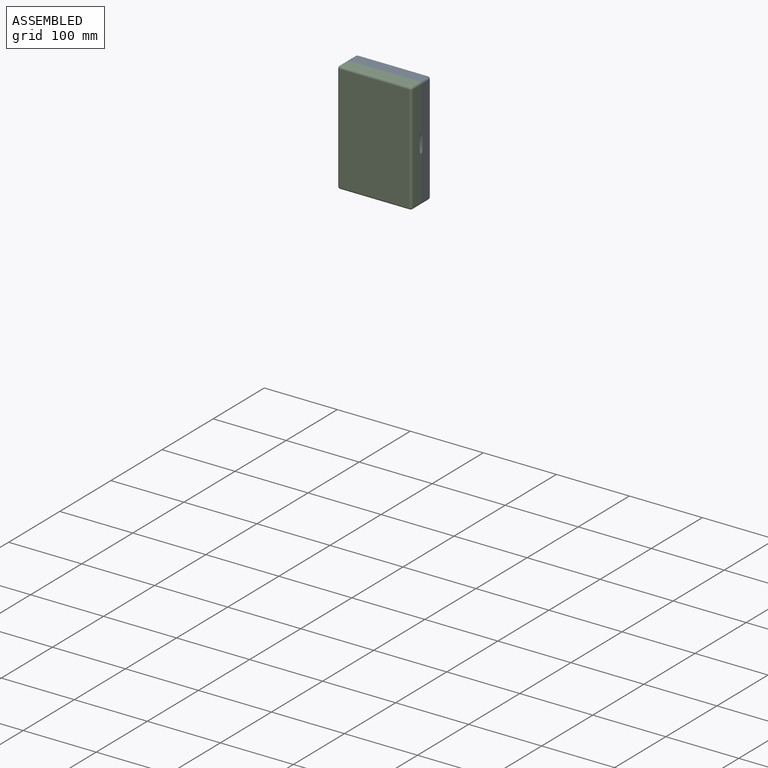
[diagram: assembled view]
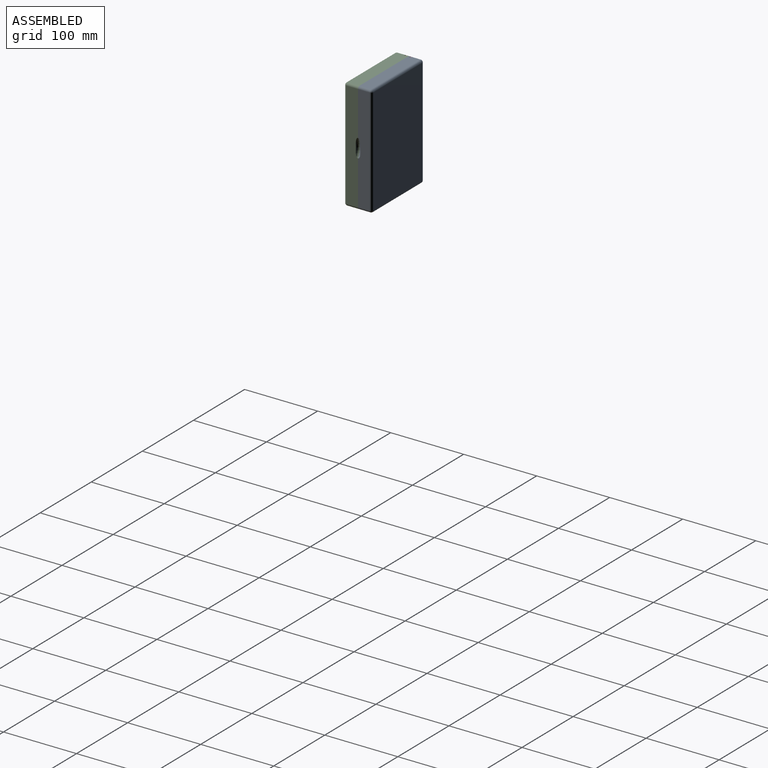
[diagram: assembled view, second angle]
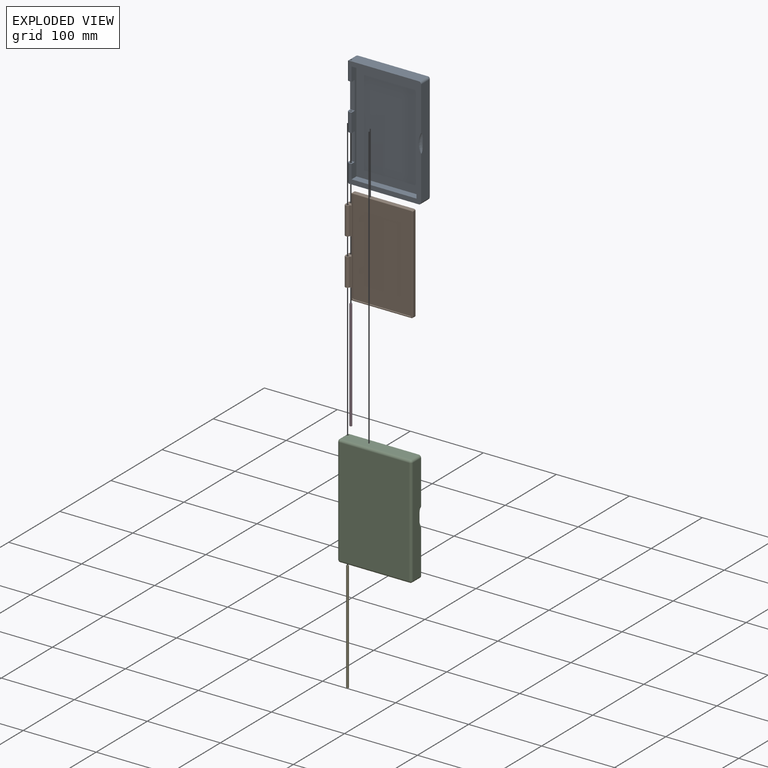
[diagram: exploded view]
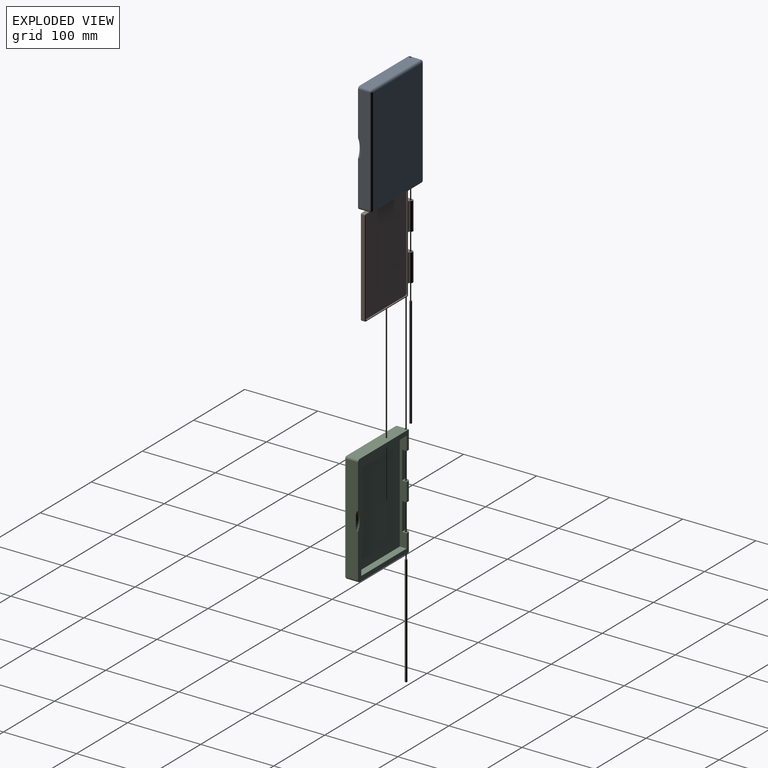
[diagram: exploded view, second angle]
ASSEMBLY  parts=5 mates=4
PART A: 39 faces, bbox 106.4x21.3x152.4 mm
  f0: plane 152.4x98.43mm, normal (0,-1,0), area 2198.4mm2, adj f1,f3,f4,f6,f8,f9,f10,f12
  f1: plane 146.05x15.88mm, normal (-1,0,0), area 2248.1mm2, adj f0,f21,f24,f25,f36,f37,f38
  f2: plane 25.4x3.18mm, normal (0,-1,0), area 80.6mm2, adj f3,f13,f16,f35
  f3: plane 139.7x9.53mm, normal (-1,0,0), area 846.8mm2, adj f0,f2,f8,f10,f11,f12,f13,f14
  f4: plane 95.25x15.88mm, normal (0,0,-1), area 1508.1mm2, adj f0,f19,f21,f26,f27
  f5: plane 146.05x12.7mm, normal (1,0,0), area 1612.9mm2, adj f12,f13,f14,f15,f16,f17,f23,f27
  f6: plane 95.25x15.88mm, normal (0,0,1), area 1508.1mm2, adj f0,f20,f24,f30,f33
  f7: plane 146.05x95.25mm, normal (0,1,0), area 13911.3mm2, adj f25,f26,f30,f31
  f8: plane 88.9x9.53mm, normal (0,0,-1), area 846.8mm2, adj f0,f3,f9,f11
  f9: plane 139.7x9.53mm, normal (1,0,0), area 1330.6mm2, adj f0,f8,f10,f11
  f10: plane 88.9x9.53mm, normal (0,0,1), area 846.8mm2, adj f0,f3,f9,f11
  f11: plane 139.7x88.9mm, normal (0,-1,0), area 12419.3mm2, adj f3,f8,f9,f10
  f12: plane 6.35x6.35mm, normal (0,0,-1), area 30.2mm2, adj f0,f3,f5,f14,f20,f34
  f13: plane 6.35x6.35mm, normal (0,0,1), area 30.2mm2, adj f2,f3,f5,f14,f18,f35
  f14: plane 38.1x6.35mm, normal (0,-1,0), area 241.9mm2, adj f3,f5,f12,f13
  f15: plane 6.35x6.35mm, normal (0,0,1), area 30.2mm2, adj f0,f3,f5,f17,f19,f23
  f16: plane 6.35x6.35mm, normal (0,0,-1), area 30.2mm2, adj f2,f3,f5,f17,f18,f35
  f17: plane 38.1x6.35mm, normal (0,-1,0), area 241.9mm2, adj f3,f5,f15,f16
  f18: cylinder r=1.59mm len=25.4mm, axis (0,0,1), area 253.4mm2, adj f13,f16
  f19: cylinder r=1.59mm len=25.4mm, axis (0,0,1), area 252.3mm2, adj f4,f15,f27
  f20: cylinder r=1.59mm len=25.4mm, axis (0,0,1), area 252.3mm2, adj f6,f12,f33
  f21: cylinder r=3.17mm len=15.88mm, axis (0,1,0), area 79.2mm2, adj f0,f1,f4,f22
  f22: sphere r=3.17mm, area 15.8mm2, adj f21,f25,f26
  f23: cylinder r=3.17mm len=25.4mm, axis (0,0,-1), area 120.9mm2, adj f0,f5,f15,f27
  f24: cylinder r=3.17mm len=15.88mm, axis (0,-1,0), area 79.2mm2, adj f0,f1,f6,f28
  f25: cylinder r=3.17mm len=146.05mm, axis (0,0,-1), area 728.4mm2, adj f1,f7,f22,f28
  f26: cylinder r=3.17mm len=95.25mm, axis (1,0,0), area 475mm2, adj f4,f7,f22,f29
  f27: cylinder r=3.17mm len=15.88mm, axis (0,-1,0), area 69.3mm2, adj f4,f5,f19,f23,f29
  f28: sphere r=3.17mm, area 15.8mm2, adj f24,f25,f30
  f29: sphere r=3.17mm, area 15.8mm2, adj f26,f27,f31
  f30: cylinder r=3.17mm len=95.25mm, axis (-1,0,0), area 475mm2, adj f6,f7,f28,f32
  f31: cylinder r=3.17mm len=146.05mm, axis (0,0,1), area 728.4mm2, adj f5,f7,f29,f32
  f32: sphere r=3.17mm, area 15.8mm2, adj f30,f31,f33
  f33: cylinder r=3.17mm len=15.88mm, axis (0,1,0), area 69.3mm2, adj f5,f6,f20,f32,f34
  f34: cylinder r=3.17mm len=25.4mm, axis (0,0,-1), area 120.9mm2, adj f0,f5,f12,f33
  f35: cylinder r=3.17mm len=25.4mm, axis (0,0,-1), area 126.7mm2, adj f2,f5,f13,f16
  f36: torus R=22.23mm, axis (0,-1,0), area 47.9mm2, adj f0,f1,f37
  f37: cylinder r=3.17mm len=3.18mm, axis (0,0,1), area 4mm2, adj f0,f1,f36,f38
  f38: torus R=22.23mm, axis (0,-1,0), area 47.9mm2, adj f0,f1,f37
PART B: 64 faces, bbox 92.2x12.7x133.6 mm
  f0: plane 38.1x6.35mm, normal (1,0,0), area 241.9mm2, adj f8,f9,f28,f29
  f1: plane 131.76x84.93mm, normal (0,-1,0), area 520.8mm2, adj f5,f7,f8,f9,f18,f19,f20,f21
  f2: plane 131.76x84.93mm, normal (0,1,0), area 520.8mm2, adj f5,f7,f8,f9,f13,f14,f15,f16
  f3: plane 80.96x4.76mm, normal (0,0,1), area 385.6mm2, adj f40,f42,f47,f55
  f4: plane 80.96x4.76mm, normal (0,0,-1), area 385.6mm2, adj f41,f43,f50,f59
  f5: plane 12.7x8.73mm, normal (0,0,-1), area 66.5mm2, adj f1,f2,f6,f23,f26,f27,f30,f31
  f6: plane 38.1x6.35mm, normal (1,0,0), area 241.9mm2, adj f5,f7,f30,f31
  f7: plane 12.7x8.73mm, normal (0,0,1), area 66.5mm2, adj f1,f2,f6,f12,f26,f27,f30,f31
  f8: plane 12.7x8.73mm, normal (0,0,1), area 66.5mm2, adj f0,f1,f2,f23,f24,f25,f28,f29
  f9: plane 12.7x8.73mm, normal (0,0,-1), area 66.5mm2, adj f0,f1,f2,f11,f24,f25,f28,f29
  f10: plane 130.18x4.76mm, normal (-1,0,0), area 620mm2, adj f42,f43,f51,f57
  f11: plane 14.29x4.76mm, normal (1,0,0), area 68mm2, adj f9,f41,f46,f60
  f12: plane 14.29x4.76mm, normal (1,0,0), area 68mm2, adj f7,f40,f44,f53
  f13: plane 77.79x1.59mm, normal (0,0,-1), area 123.5mm2, adj f2,f17,f36,f39
  f14: plane 127x1.59mm, normal (-1,0,0), area 201.6mm2, adj f2,f17,f36,f37
  f15: plane 77.79x1.59mm, normal (0,0,1), area 123.5mm2, adj f2,f17,f37,f38
  f16: plane 127x1.59mm, normal (1,0,0), area 201.6mm2, adj f2,f17,f38,f39
  f17: plane 130.18x80.96mm, normal (0,1,0), area 10537.1mm2, adj f13,f14,f15,f16,f36,f37,f38,f39
  f18: plane 77.79x1.59mm, normal (0,0,1), area 123.5mm2, adj f1,f22,f32,f35
  f19: plane 127x1.59mm, normal (-1,0,0), area 201.6mm2, adj f1,f22,f32,f33
  f20: plane 77.79x1.59mm, normal (0,0,-1), area 123.5mm2, adj f1,f22,f33,f34
  f21: plane 127x1.59mm, normal (1,0,0), area 201.6mm2, adj f1,f22,f34,f35
  f22: plane 130.18x80.96mm, normal (0,-1,0), area 10537.1mm2, adj f18,f19,f20,f21,f32,f33,f34,f35
  f23: plane 25.4x4.76mm, normal (1,0,0), area 121mm2, adj f5,f8,f62,f63
  f24: cylinder r=1.59mm len=38.1mm, axis (0,0,-1), area 380mm2, adj f8,f9
  f25: cylinder r=1.59mm len=38.1mm, axis (0,0,-1), area 380mm2, adj f8,f9
  f26: cylinder r=1.59mm len=38.1mm, axis (0,0,-1), area 380mm2, adj f5,f7
  f27: cylinder r=1.59mm len=38.1mm, axis (0,0,-1), area 380mm2, adj f5,f7
  f28: cylinder r=3.17mm len=38.1mm, axis (0,0,1), area 380mm2, adj f0,f2,f8,f9
  f29: cylinder r=3.17mm len=38.1mm, axis (0,0,-1), area 380mm2, adj f0,f1,f8,f9
  f30: cylinder r=3.17mm len=38.1mm, axis (0,0,-1), area 380mm2, adj f2,f5,f6,f7
  f31: cylinder r=3.17mm len=38.1mm, axis (0,0,1), area 380mm2, adj f1,f5,f6,f7
  f32: cylinder r=1.59mm len=1.59mm, axis (0,-1,0), area 4mm2, adj f1,f18,f19,f22
  f33: cylinder r=1.59mm len=1.59mm, axis (0,1,0), area 4mm2, adj f1,f19,f20,f22
  f34: cylinder r=1.59mm len=1.59mm, axis (0,1,0), area 4mm2, adj f1,f20,f21,f22
  f35: cylinder r=1.59mm len=1.59mm, axis (0,-1,0), area 4mm2, adj f1,f18,f21,f22
  f36: cylinder r=1.59mm len=1.59mm, axis (0,1,0), area 4mm2, adj f2,f13,f14,f17
  f37: cylinder r=1.59mm len=1.59mm, axis (0,-1,0), area 4mm2, adj f2,f14,f15,f17
  f38: cylinder r=1.59mm len=1.59mm, axis (0,1,0), area 4mm2, adj f2,f15,f16,f17
  f39: cylinder r=1.59mm len=1.59mm, axis (0,-1,0), area 4mm2, adj f2,f13,f16,f17
  f40: cylinder r=1.59mm len=4.76mm, axis (0,-1,0), area 11.9mm2, adj f3,f12,f45,f54
  f41: cylinder r=1.59mm len=4.76mm, axis (0,-1,0), area 11.9mm2, adj f4,f11,f48,f61
  f42: cylinder r=1.59mm len=4.76mm, axis (0,1,0), area 11.9mm2, adj f3,f10,f49,f56
  f43: cylinder r=1.59mm len=4.76mm, axis (0,-1,0), area 11.9mm2, adj f4,f10,f52,f58
  f44: cylinder r=0.79mm len=14.29mm, axis (0,0,-1), area 17.8mm2, adj f2,f7,f12,f45
  f45: torus R=0.79mm, axis (0,-1,0), area 2.5mm2, adj f2,f40,f44,f47
  f46: cylinder r=0.79mm len=14.29mm, axis (0,0,-1), area 17.8mm2, adj f2,f9,f11,f48
  f47: cylinder r=0.79mm len=80.96mm, axis (-1,0,0), area 100.9mm2, adj f2,f3,f45,f49
  f48: torus R=0.79mm, axis (0,-1,0), area 2.5mm2, adj f2,f41,f46,f50
  f49: torus R=0.79mm, axis (0,-1,0), area 2.5mm2, adj f2,f42,f47,f51
  f50: cylinder r=0.79mm len=80.96mm, axis (1,0,0), area 100.9mm2, adj f2,f4,f48,f52
  f51: cylinder r=0.79mm len=130.18mm, axis (0,0,-1), area 162.3mm2, adj f2,f10,f49,f52
  f52: torus R=0.79mm, axis (0,-1,0), area 2.5mm2, adj f2,f43,f50,f51
  f53: cylinder r=0.79mm len=14.29mm, axis (0,0,1), area 17.8mm2, adj f1,f7,f12,f54
  f54: torus R=0.79mm, axis (0,-1,0), area 2.5mm2, adj f1,f40,f53,f55
  f55: cylinder r=0.79mm len=80.96mm, axis (1,0,0), area 100.9mm2, adj f1,f3,f54,f56
  f56: torus R=0.79mm, axis (0,-1,0), area 2.5mm2, adj f1,f42,f55,f57
  f57: cylinder r=0.79mm len=130.18mm, axis (0,0,1), area 162.3mm2, adj f1,f10,f56,f58
  f58: torus R=0.79mm, axis (0,-1,0), area 2.5mm2, adj f1,f43,f57,f59
  f59: cylinder r=0.79mm len=80.96mm, axis (-1,0,0), area 100.9mm2, adj f1,f4,f58,f61
  f60: cylinder r=0.79mm len=14.29mm, axis (0,0,1), area 17.8mm2, adj f1,f9,f11,f61
  f61: torus R=0.79mm, axis (0,-1,0), area 2.5mm2, adj f1,f41,f59,f60
  f62: cylinder r=0.79mm len=25.4mm, axis (0,0,1), area 31.7mm2, adj f1,f5,f8,f23
  f63: cylinder r=0.79mm len=25.4mm, axis (0,0,-1), area 31.7mm2, adj f2,f5,f8,f23
PART C: same geometry as A
PART D: 3 faces, bbox 3.2x3.2x151.6 mm
  f0: cylinder r=1.59mm len=151.56mm, axis (0,0,-1), area 1511.8mm2, adj f1,f2
  f1: plane 3.18x3.18mm, normal (0,0,1), area 7.9mm2, adj f0
  f2: plane 3.18x3.18mm, normal (0,0,-1), area 7.9mm2, adj f0
PART E: same geometry as D
PLACE A rot(axis=(0,1,0),180deg) t=(84.14,9.52,0)mm fixed
PLACE B rot(axis=(0,0,1),180deg) t=(79.37,0,0)mm
PLACE C rot(axis=(0,0,1),180deg) t=(84.14,-9.53,0)mm
PLACE D t=(36.51,3.17,0)mm
PLACE E rot(axis=(0,0,1),180deg) t=(36.51,-3.17,0)mm
MATE fastened D.f0 <-> A.f23  axis (0,0,-1) through (36.51,3.17,-75.78)mm
MATE revolute C.f18 <-> B.f25  axis (0,0,-1) through (36.51,-3.17,-50.8)mm
MATE revolute A.f23 <-> B.f24  axis (0,0,1) through (36.51,3.17,-50.8)mm
MATE fastened E.f0 <-> C.f18  axis (0,0,-1) through (36.51,-3.17,-75.78)mm
